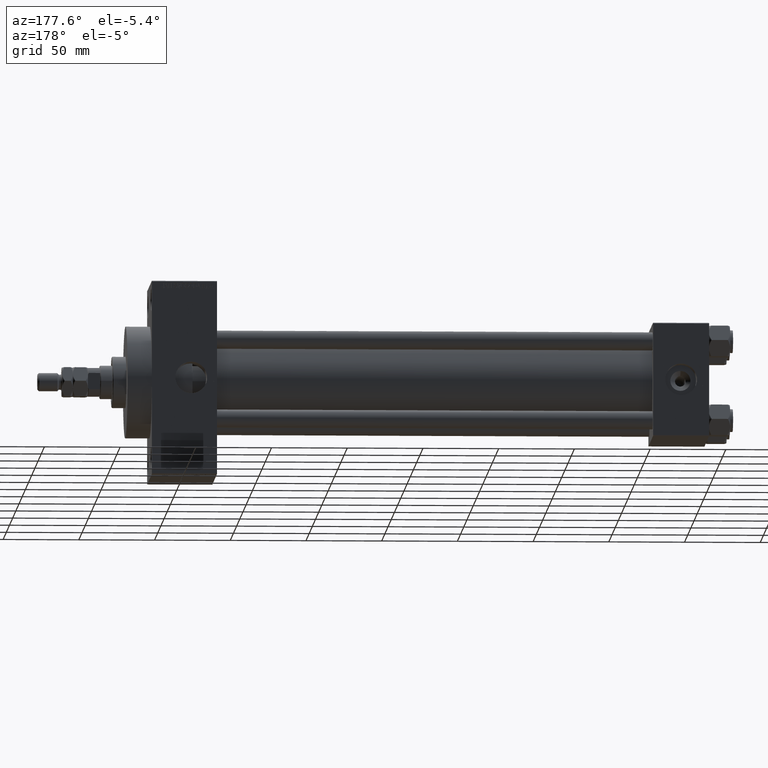
[diagram: clean part render]
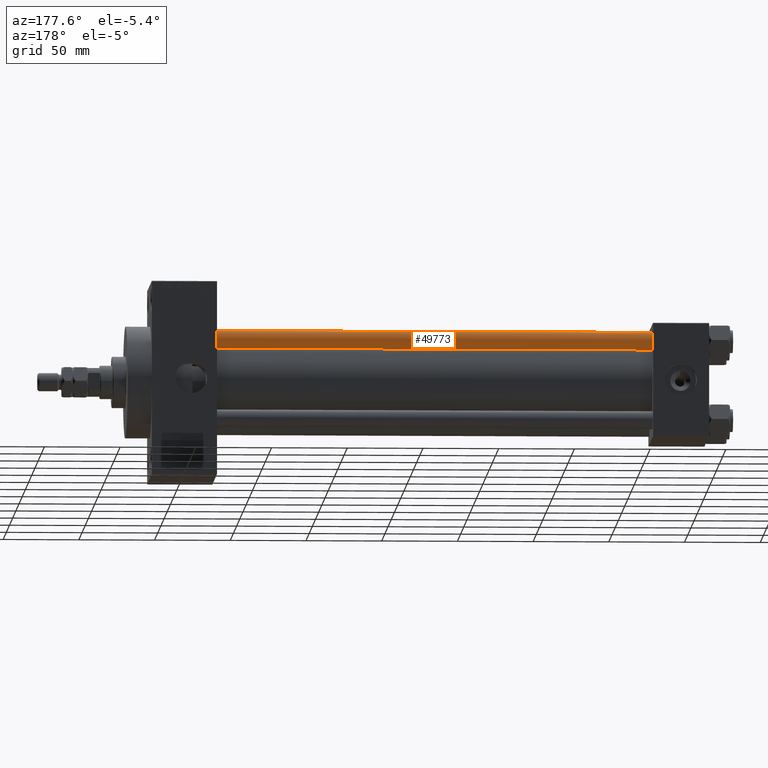
[diagram: same view with one face highlighted and labeled with its STEP entity id]
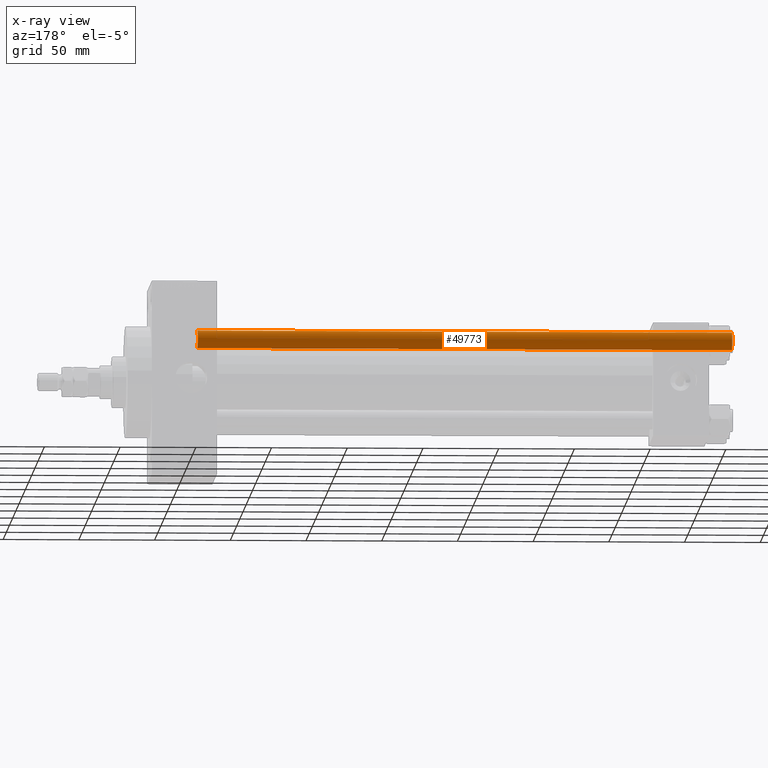
[diagram: x-ray of the same camera — body ghosted, the highlighted face saturated]
A machine part, auxiliary view. The second image highlights one B-rep face of the part: STEP entity #49773.
The next image is the same camera in x-ray: the body ghosted, the highlighted face saturated — about 0% of this face is hidden behind the body in this view.
In plain terms, the highlighted cylindrical surface (edge-blend (fillet) strip) has radius 6 mm, axis along (-1, -0, 0).
Its self-contained STEP definition (entity closure, byte-faithful):
#168 = VERTEX_POINT ( 'NONE', #15755 ) ;
#1882 = DIRECTION ( 'NONE',  ( -0.000000000000000000, -0.000000000000000000, -1.000000000000000000 ) ) ;
#3345 = CARTESIAN_POINT ( 'NONE',  ( 0.000000000000000000, 0.000000000000000000, 0.5000000000000559552 ) ) ;
#4407 = CARTESIAN_POINT ( 'NONE',  ( 0.000000000000000000, 0.000000000000000000, 354.0000000000000000 ) ) ;
#9532 = EDGE_CURVE ( 'NONE', #37655, #26505, #17684, .T. ) ;
#11913 = ORIENTED_EDGE ( 'NONE', *, *, #49790, .T. ) ;
#13720 = CIRCLE ( 'NONE', #35899, 6.000000000000000888 ) ;
#14060 = EDGE_LOOP ( 'NONE', ( #11913, #22211, #32712, #23259 ) ) ;
#15364 = AXIS2_PLACEMENT_3D ( 'NONE', #44501, #48351, #48095 ) ;
#15417 = DIRECTION ( 'NONE',  ( 1.000000000000000000, 0.000000000000000000, 0.000000000000000000 ) ) ;
#15639 = EDGE_CURVE ( 'NONE', #21190, #26505, #13720, .T. ) ;
#15755 = CARTESIAN_POINT ( 'NONE',  ( 6.000000000000000888, 7.347880794884120722E-16, 353.5000000000000000 ) ) ;
#16970 = CYLINDRICAL_SURFACE ( 'NONE', #21111, 6.000000000000000888 ) ;
#17684 = LINE ( 'NONE', #29520, #48434 ) ;
#20089 = DIRECTION ( 'NONE',  ( -0.000000000000000000, -0.000000000000000000, -1.000000000000000000 ) ) ;
#21111 = AXIS2_PLACEMENT_3D ( 'NONE', #4407, #20089, #36780 ) ;
#21190 = VERTEX_POINT ( 'NONE', #41717 ) ;
#22211 = ORIENTED_EDGE ( 'NONE', *, *, #44740, .T. ) ;
#22767 = CIRCLE ( 'NONE', #15364, 6.000000000000000888 ) ;
#23259 = ORIENTED_EDGE ( 'NONE', *, *, #9532, .F. ) ;
#23922 = CARTESIAN_POINT ( 'NONE',  ( -6.000000000000000888, 0.000000000000000000, 0.5000000000000559552 ) ) ;
#25799 = VECTOR ( 'NONE', #1882, 1000.000000000000000 ) ;
#26505 = VERTEX_POINT ( 'NONE', #23922 ) ;
#29520 = CARTESIAN_POINT ( 'NONE',  ( -6.000000000000000888, 0.000000000000000000, 354.0000000000000000 ) ) ;
#29897 = CARTESIAN_POINT ( 'NONE',  ( 6.000000000000000888, 7.347880794884120722E-16, 354.0000000000000000 ) ) ;
#32472 = CARTESIAN_POINT ( 'NONE',  ( -6.000000000000000888, 0.000000000000000000, 353.5000000000000000 ) ) ;
#32712 = ORIENTED_EDGE ( 'NONE', *, *, #15639, .T. ) ;
#33251 = LINE ( 'NONE', #29897, #25799 ) ;
#35899 = AXIS2_PLACEMENT_3D ( 'NONE', #3345, #50397, #15417 ) ;
#36780 = DIRECTION ( 'NONE',  ( -1.000000000000000000, 0.000000000000000000, 0.000000000000000000 ) ) ;
#37655 = VERTEX_POINT ( 'NONE', #32472 ) ;
#39643 = FACE_OUTER_BOUND ( 'NONE', #14060, .T. ) ;
#41717 = CARTESIAN_POINT ( 'NONE',  ( 6.000000000000000888, 7.347880794884120722E-16, 0.5000000000000559552 ) ) ;
#44501 = CARTESIAN_POINT ( 'NONE',  ( 0.000000000000000000, 0.000000000000000000, 353.5000000000000000 ) ) ;
#44740 = EDGE_CURVE ( 'NONE', #168, #21190, #33251, .T. ) ;
#45212 = DIRECTION ( 'NONE',  ( -0.000000000000000000, -0.000000000000000000, -1.000000000000000000 ) ) ;
#48095 = DIRECTION ( 'NONE',  ( 1.000000000000000000, 0.000000000000000000, 0.000000000000000000 ) ) ;
#48351 = DIRECTION ( 'NONE',  ( 0.000000000000000000, 0.000000000000000000, -1.000000000000000000 ) ) ;
#48434 = VECTOR ( 'NONE', #45212, 1000.000000000000000 ) ;
#49773 = ADVANCED_FACE ( 'NONE', ( #39643 ), #16970, .T. ) ;
#49790 = EDGE_CURVE ( 'NONE', #37655, #168, #22767, .T. ) ;
#50397 = DIRECTION ( 'NONE',  ( -0.000000000000000000, -0.000000000000000000, 1.000000000000000000 ) ) ;